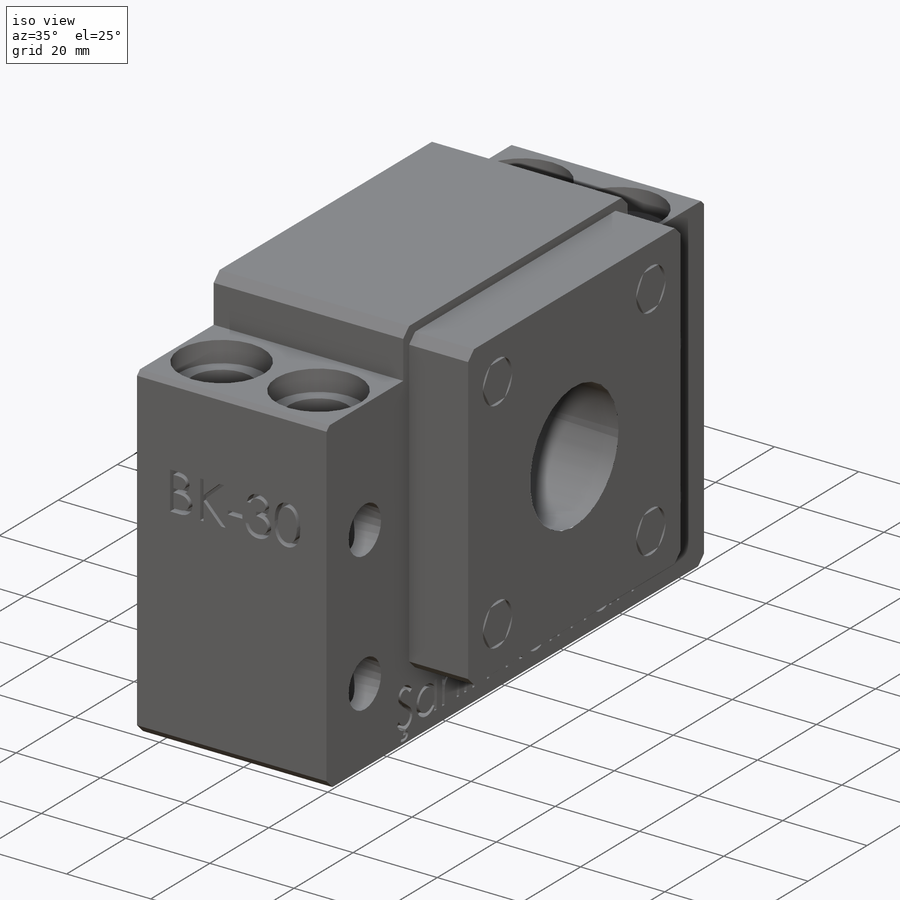
[diagram: iso view]
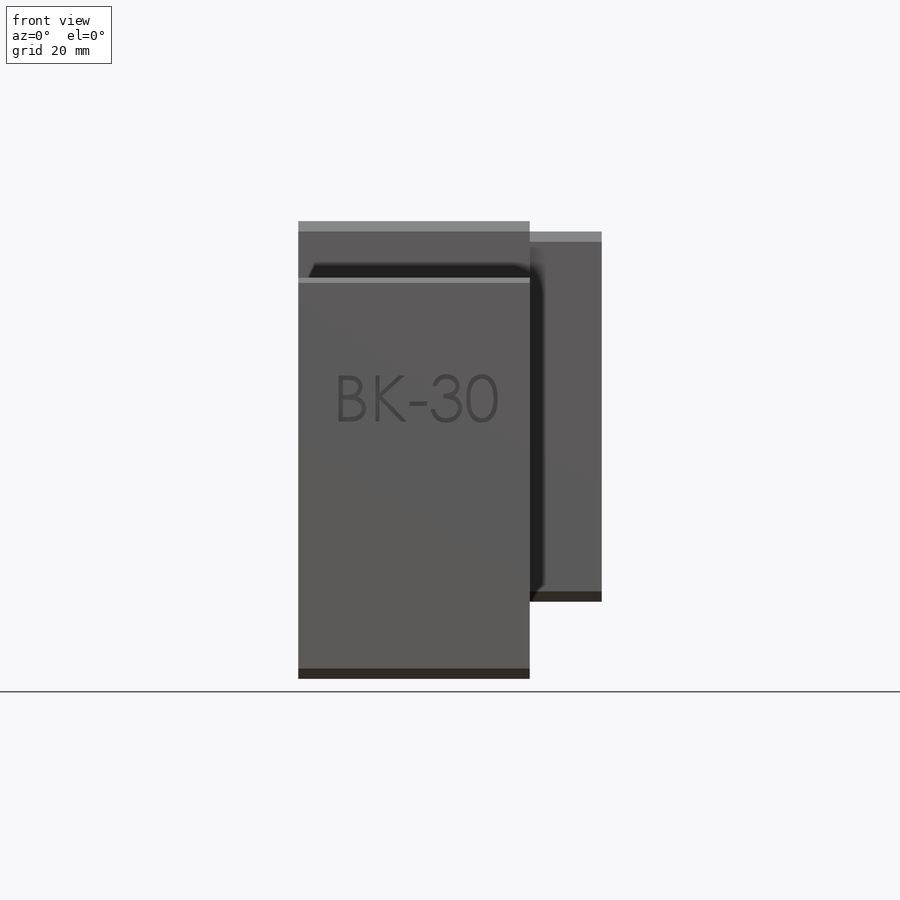
[diagram: front view]
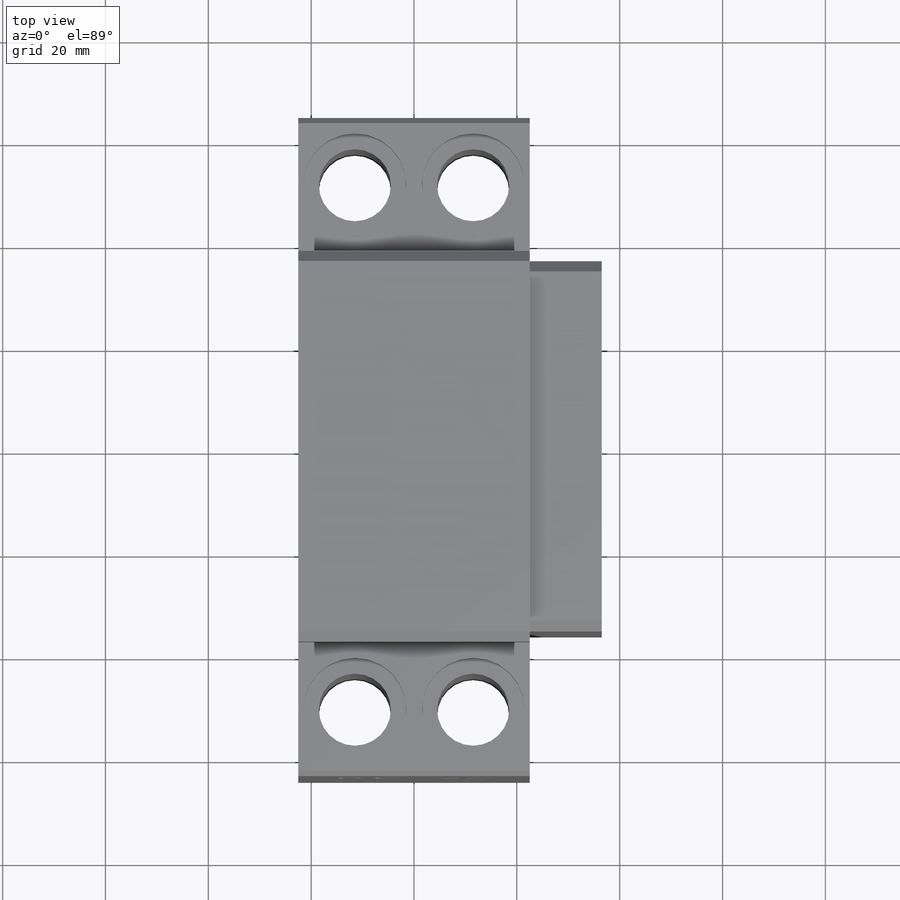
[diagram: top view]
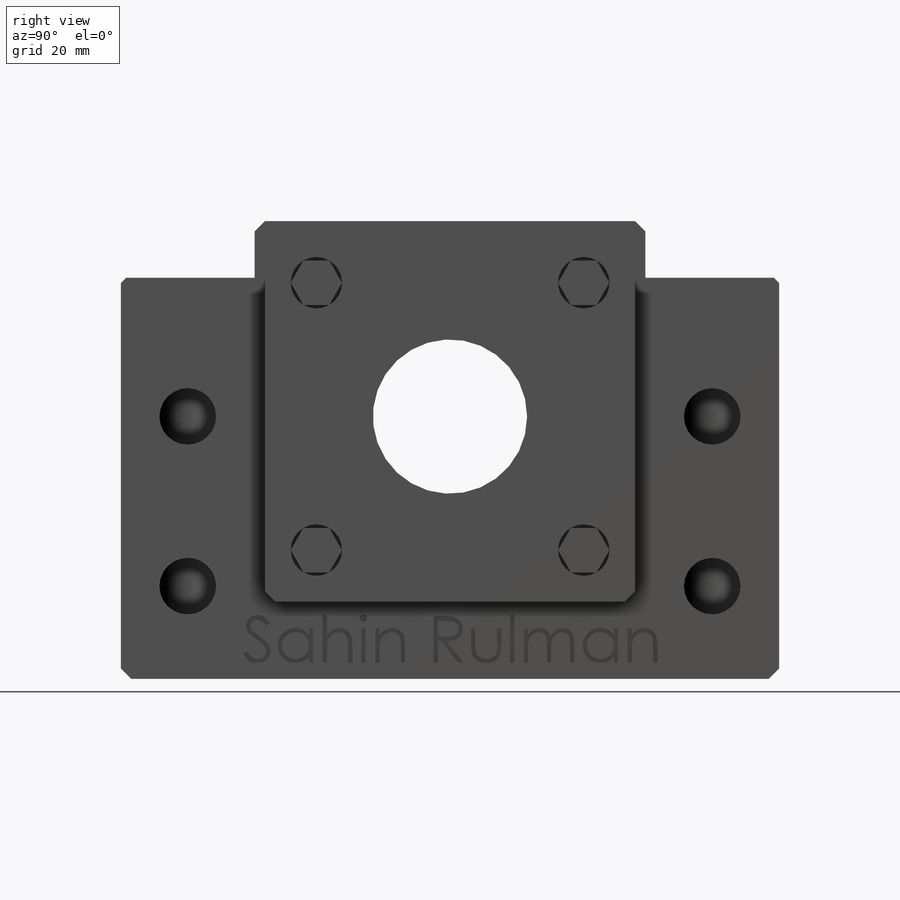
[diagram: right view]
SOLIDWORKS PART (.sldprt)
format: sldprt  version: not decoded by parser v0  size: 699,904 bytes
history: native  units: mm
features: sketch x9, cut_extrude x6, extrude x3, material x1 (+11 scaffold rows collapsed)
feature tree (30):
  scaffold x11  (default folders/planes/origin — collapsed)
  material  "Material <not specified>"
  sketch  "Sketch1"  dims[D8=30.0mm D1=128.0mm D2=64.0mm D3=76.0mm D4=38.0mm D5=89.0mm D6=78.0mm D7=78.0mm D9=51.0mm]
  extrude  "Boss-Extrude1"  Depth=45mm
  sketch  "Sketch2"  dims[D1=2.0mm D2=2.0mm D3=2.0mm D4=72.0mm]
  extrude  "Boss-Extrude2"  Depth=14mm
  sketch  "Sketch4"  dims[c1.D5=20.0mm c1.D6=20.0mm c1.D3=11.0mm c1.D4=11.0mm c2.D5=23.0mm c2.D1=51.0mm c2.D2=51.0mm]
  cut_extrude  "Cut-Extrude2"  Depth=5mm
  sketch  "Sketch5"  dims[D1=14.0mm D2=14.0mm D3=14.0mm D4=14.0mm]
  cut_extrude  "Cut-Extrude3"  [1 undecoded]
  sketch  "Sketch6"  dims[c1.D4=11.0mm c1.D5=11.0mm c1.D3=33.0mm c2.D5=~53.689539mm c2.D1=51.0mm c2.D2=51.0mm]
  cut_extrude  "Cut-Extrude4"  Depth=13mm
  sketch  "Sketch7"
  cut_extrude  "Cut-Extrude5"  Depth=2mm
  sketch  "Sketch8"
  cut_extrude  "Cut-Extrude6"  Depth=2mm
  sketch  "Sketch9"  dims[c1.D1=10.0mm c1.D2=10.0mm c1.D3=10.0mm c1.D4=10.0mm c1.D5=~12.806248mm c2.D5=90.0deg c3.D5=10.0mm c3.D6=10.0mm c3.D7=10.0mm c3.D8=10.0mm]
  cut_extrude  "Cut-Extrude7"  [1 undecoded]
  sketch  "Sketch10"
  extrude  "Boss-Extrude3"  [1 undecoded]
decode coverage: 12 of 18 modeling features carry decoded parameters
note: ~ marks probable driven/reference dimensions
note: 3 parameter values undecoded
summary: no parameter record found for 3 features
note: suppression state not decoded; provenance and decode notes live in map.json
